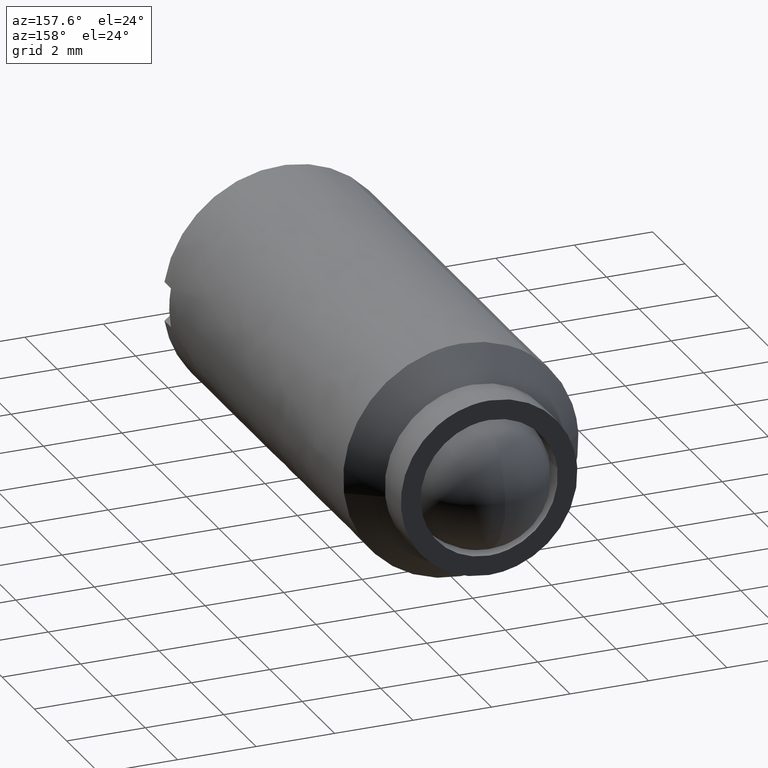
[diagram: clean part render]
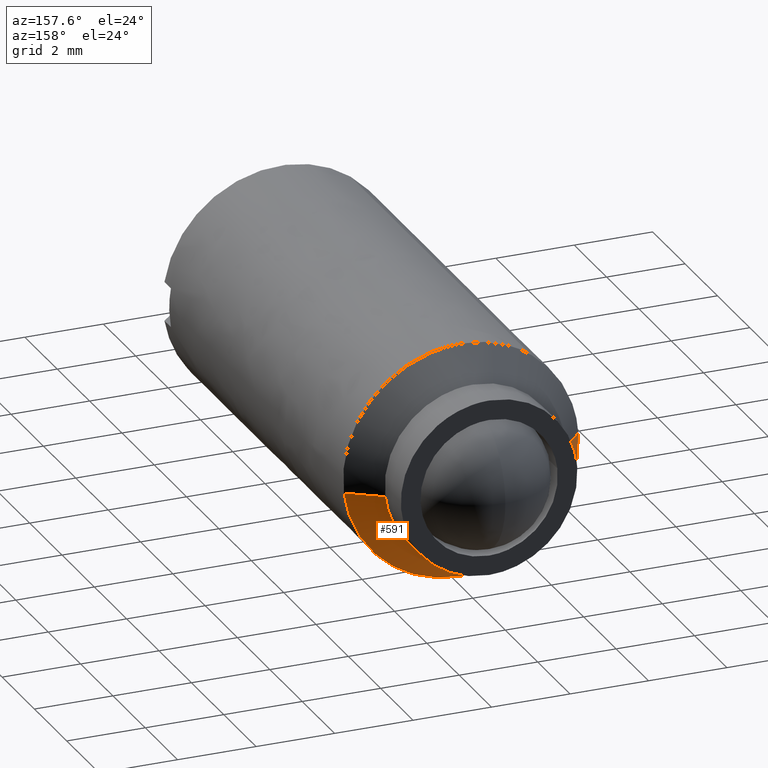
[diagram: same view with one face highlighted and labeled with its STEP entity id]
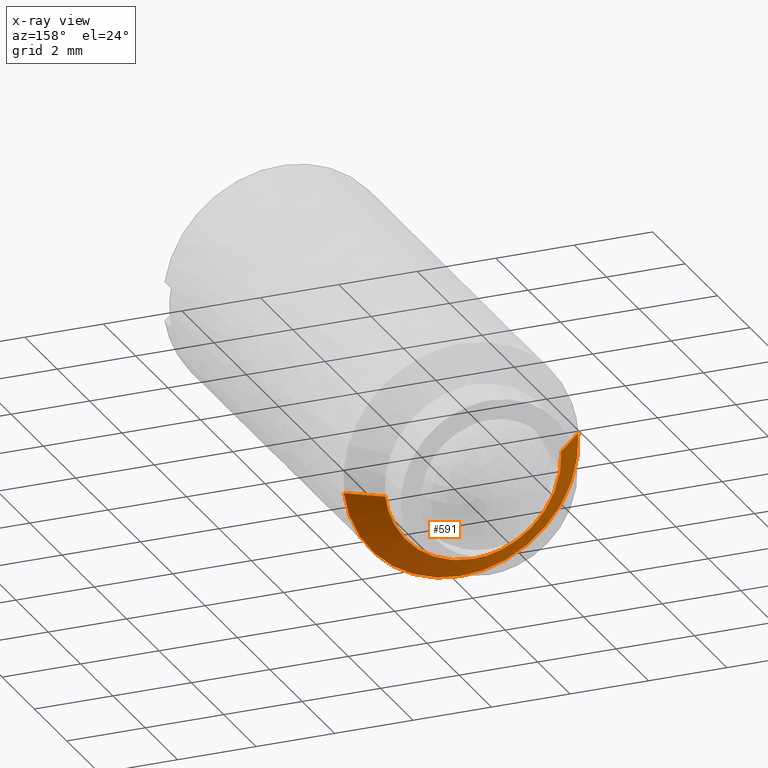
[diagram: x-ray of the same camera — body ghosted, the highlighted face saturated]
A machine part, auxiliary view. The second image highlights one B-rep face of the part: STEP entity #591.
The next image is the same camera in x-ray: the body ghosted, the highlighted face saturated — about 3% of this face is hidden behind the body in this view.
In plain terms, the highlighted face is a freeform B-spline surface patch.
Its self-contained STEP definition (entity closure, byte-faithful):
#306=CARTESIAN_POINT('',(-2.245803296450222,-2.000000000004009,0.137359213967844));
#307=VERTEX_POINT('',#306);
#351=CARTESIAN_POINT('',(2.234271434318409,-2.000000000002305,-0.265577027995891));
#352=VERTEX_POINT('',#351);
#368=CARTESIAN_POINT('',(0.0,-2.0,-2.250000000000001));
#369=VERTEX_POINT('',#368);
#370=CARTESIAN_POINT('',(0.0,-2.0,-2.250000000000001));
#371=CARTESIAN_POINT('',(1.998392683358309,-2.000000000000000,-2.250000000000001));
#372=CARTESIAN_POINT('',(2.234271434318410,-2.000000000002305,-0.265577027995891));
#380=(BOUNDED_CURVE()B_SPLINE_CURVE(2,(#370,#371,#372),.UNSPECIFIED.,.F.,.U.)B_SPLINE_CURVE_WITH_KNOTS((3,3),(0.0,0.229562473512934),.UNSPECIFIED.)CURVE()GEOMETRIC_REPRESENTATION_ITEM()RATIONAL_B_SPLINE_CURVE((1.0,0.731050832856075,0.956026754182574))REPRESENTATION_ITEM(''));
#381=EDGE_CURVE('',#369,#352,#380,.T.);
#383=CARTESIAN_POINT('',(-2.245803296450222,-2.000000000004009,0.137359213967844));
#384=CARTESIAN_POINT('',(-2.250000000000000,-2.000000000000000,0.068743717450506));
#385=CARTESIAN_POINT('',(-2.250000000000000,-2.0,-9.796851E-016));
#386=CARTESIAN_POINT('',(-2.250000000000000,-2.0,-2.250000000000000));
#387=CARTESIAN_POINT('',(0.0,-2.0,-2.250000000000001));
#395=(BOUNDED_CURVE()B_SPLINE_CURVE(2,(#383,#384,#385,#386,#387),.UNSPECIFIED.,.F.,.U.)B_SPLINE_CURVE_WITH_KNOTS((3,2,3),(0.739332962237573,0.750000000000000,1.0),.UNSPECIFIED.)CURVE()GEOMETRIC_REPRESENTATION_ITEM()RATIONAL_B_SPLINE_CURVE((0.976072041663782,0.987502787898233,1.0,0.707106781186547,1.0))REPRESENTATION_ITEM(''));
#396=EDGE_CURVE('',#307,#369,#395,.T.);
#460=CARTESIAN_POINT('',(-2.994404395267101,-2.750000000002790,0.183145618625737));
#461=VERTEX_POINT('',#460);
#462=CARTESIAN_POINT('',(-2.245803296450222,-2.000000000004009,0.137359213967844));
#463=CARTESIAN_POINT('',(-2.994404395267101,-2.750000000002790,0.183145618625737));
#464=QUASI_UNIFORM_CURVE('',1,(#462,#463),.UNSPECIFIED.,.F.,.U.);
#465=EDGE_CURVE('',#307,#461,#464,.T.);
#497=CARTESIAN_POINT('',(2.979028579091096,-2.750000000001402,-0.354102703981332));
#498=VERTEX_POINT('',#497);
#514=CARTESIAN_POINT('',(2.234271434318409,-2.000000000002305,-0.265577027995891));
#515=CARTESIAN_POINT('',(2.979028579091096,-2.750000000001402,-0.354102703981332));
#516=QUASI_UNIFORM_CURVE('',1,(#514,#515),.UNSPECIFIED.,.F.,.U.);
#517=EDGE_CURVE('',#352,#498,#516,.T.);
#522=CARTESIAN_POINT('',(-2.227088268978790,-1.981250000000000,0.136214553837149));
#523=CARTESIAN_POINT('',(-2.363302822815940,-1.981250000000000,-2.090873715141641));
#524=CARTESIAN_POINT('',(-0.136214553837150,-1.981250000000000,-2.227088268978791));
#525=CARTESIAN_POINT('',(1.966943913935636,-1.981250000000001,-2.355722951459453));
#526=CARTESIAN_POINT('',(2.215652505698930,-1.981250000000000,-0.263363886077893));
#527=CARTESIAN_POINT('',(-3.013587298422772,-2.769218750000000,0.184318895223756));
#528=CARTESIAN_POINT('',(-3.197906193646529,-2.769218750000000,-2.829268403199017));
#529=CARTESIAN_POINT('',(-0.184318895223757,-2.769218750000000,-3.013587298422773));
#530=CARTESIAN_POINT('',(2.661572636483076,-2.769218750000001,-3.187649481166037));
#531=CARTESIAN_POINT('',(2.998112980925802,-2.769218750000000,-0.356371174417586));
#539=(BOUNDED_SURFACE()B_SPLINE_SURFACE(2,1,((#522,#527),(#523,#528),(#524,#529),(#525,#530),(#526,#531)),.UNSPECIFIED.,.F.,.F.,.U.)B_SPLINE_SURFACE_WITH_KNOTS((3,2,3),(2,2),(0.0,5.002405416084574,9.804714615525764),(0.0,1.0),.UNSPECIFIED.)GEOMETRIC_REPRESENTATION_ITEM()RATIONAL_B_SPLINE_SURFACE(((1.0,1.0),(0.707106781186548,0.707106781186548),(1.0,1.0),(0.718822509939086,0.718822509939086),(0.977505800795127,0.977505800795127)))REPRESENTATION_ITEM('')SURFACE());
#540=ORIENTED_EDGE('',*,*,#381,.T.);
#541=ORIENTED_EDGE('',*,*,#517,.T.);
#542=CARTESIAN_POINT('',(0.0,-2.750000000000000,-3.000000000000001));
#543=VERTEX_POINT('',#542);
#544=CARTESIAN_POINT('',(0.0,-2.750000000000000,-3.000000000000001));
#545=CARTESIAN_POINT('',(2.664523577834485,-2.750000000000000,-3.000000000000001));
#546=CARTESIAN_POINT('',(2.979028579091097,-2.750000000001402,-0.354102703981332));
#554=(BOUNDED_CURVE()B_SPLINE_CURVE(2,(#544,#545,#546),.UNSPECIFIED.,.F.,.U.)B_SPLINE_CURVE_WITH_KNOTS((3,3),(0.0,0.229562473514409),.UNSPECIFIED.)CURVE()GEOMETRIC_REPRESENTATION_ITEM()RATIONAL_B_SPLINE_CURVE((1.0,0.731050832854348,0.956026754185464))REPRESENTATION_ITEM(''));
#555=EDGE_CURVE('',#543,#498,#554,.T.);
#556=ORIENTED_EDGE('',*,*,#555,.F.);
#557=CARTESIAN_POINT('',(-2.509681558042595,-2.749999999999988,-1.643623581365348));
#558=VERTEX_POINT('',#557);
#559=CARTESIAN_POINT('',(-2.509681558042595,-2.749999999999987,-1.643623581365348));
#560=CARTESIAN_POINT('',(-1.621373253695192,-2.750000000000000,-3.000000000000002));
#561=CARTESIAN_POINT('',(0.0,-2.750000000000000,-3.000000000000001));
#569=(BOUNDED_CURVE()B_SPLINE_CURVE(2,(#559,#560,#561),.UNSPECIFIED.,.F.,.U.)B_SPLINE_CURVE_WITH_KNOTS((3,3),(0.843871112190330,1.0),.UNSPECIFIED.)CURVE()GEOMETRIC_REPRESENTATION_ITEM()RATIONAL_B_SPLINE_CURVE((0.862635495281240,0.817083629998645,1.0))REPRESENTATION_ITEM(''));
#570=EDGE_CURVE('',#558,#543,#569,.T.);
#571=ORIENTED_EDGE('',*,*,#570,.F.);
#572=CARTESIAN_POINT('',(-2.994404395267102,-2.750000000002790,0.183145618625737));
#573=CARTESIAN_POINT('',(-3.000000000000000,-2.750000000000000,0.091658289916822));
#574=CARTESIAN_POINT('',(-3.0,-2.750000000000000,-9.796851E-016));
#575=CARTESIAN_POINT('',(-3.0,-2.750000000000000,-0.894946158180894));
#576=CARTESIAN_POINT('',(-2.509681558042595,-2.749999999999987,-1.643623581365348));
#584=(BOUNDED_CURVE()B_SPLINE_CURVE(2,(#572,#573,#574,#575,#576),.UNSPECIFIED.,.F.,.U.)B_SPLINE_CURVE_WITH_KNOTS((3,2,3),(0.739332962239548,0.750000000000000,0.843871112190330),.UNSPECIFIED.)CURVE()GEOMETRIC_REPRESENTATION_ITEM()RATIONAL_B_SPLINE_CURVE((0.976072041668016,0.987502787900547,1.0,0.890023151187902,0.862635495281240))REPRESENTATION_ITEM(''));
#585=EDGE_CURVE('',#461,#558,#584,.T.);
#586=ORIENTED_EDGE('',*,*,#585,.F.);
#587=ORIENTED_EDGE('',*,*,#465,.F.);
#588=ORIENTED_EDGE('',*,*,#396,.T.);
#589=EDGE_LOOP('',(#540,#541,#556,#571,#586,#587,#588));
#590=FACE_OUTER_BOUND('',#589,.T.);
#591=ADVANCED_FACE('',(#590),#539,.T.);